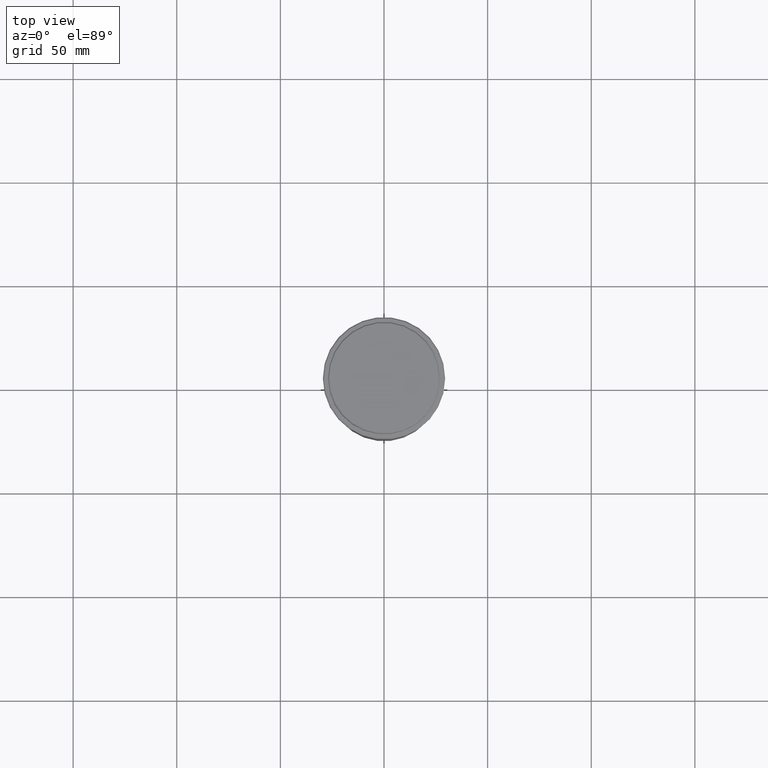
[diagram: clean part render]
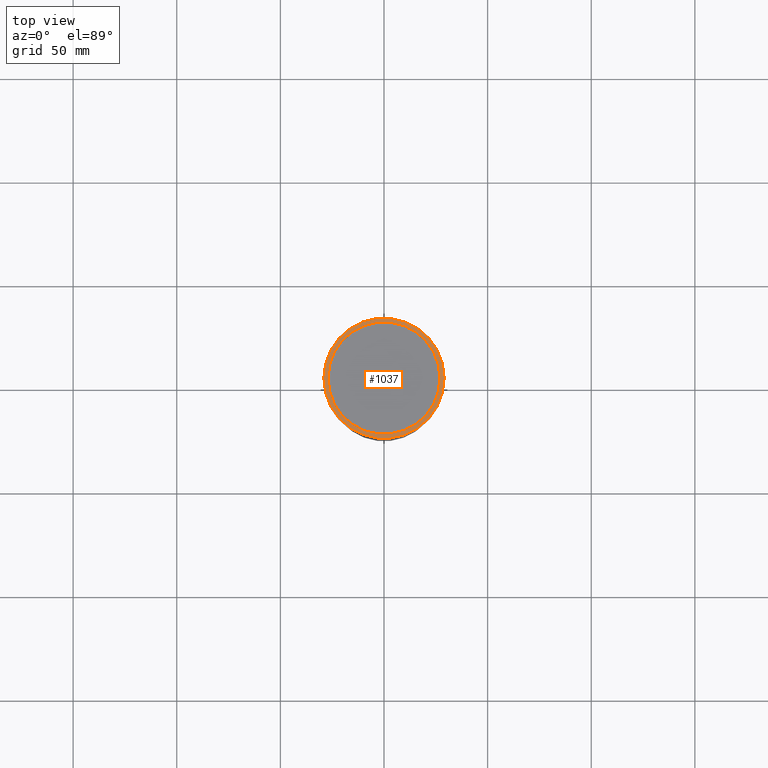
[diagram: same view with one face highlighted and labeled with its STEP entity id]
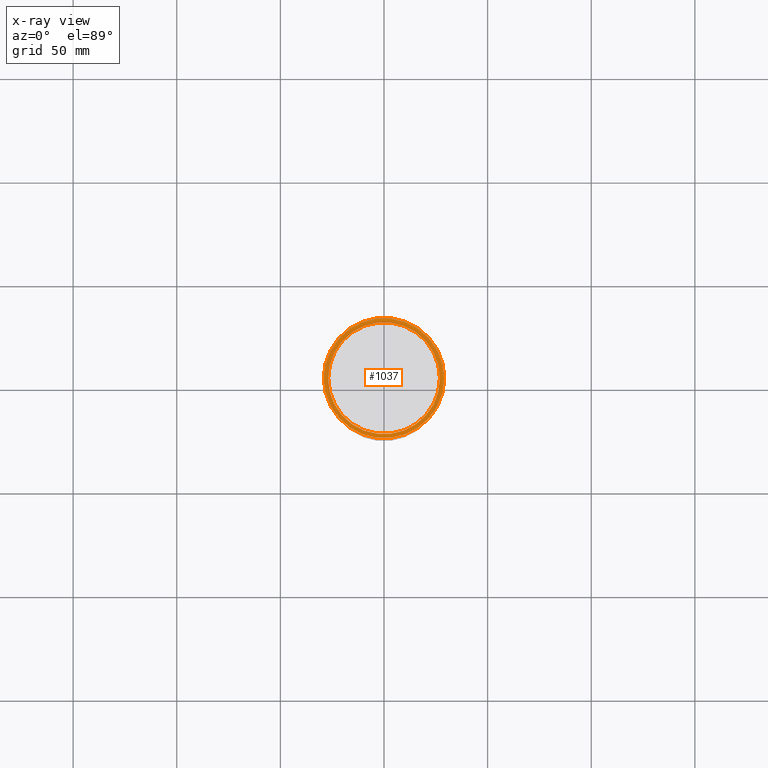
[diagram: x-ray of the same camera — body ghosted, the highlighted face saturated]
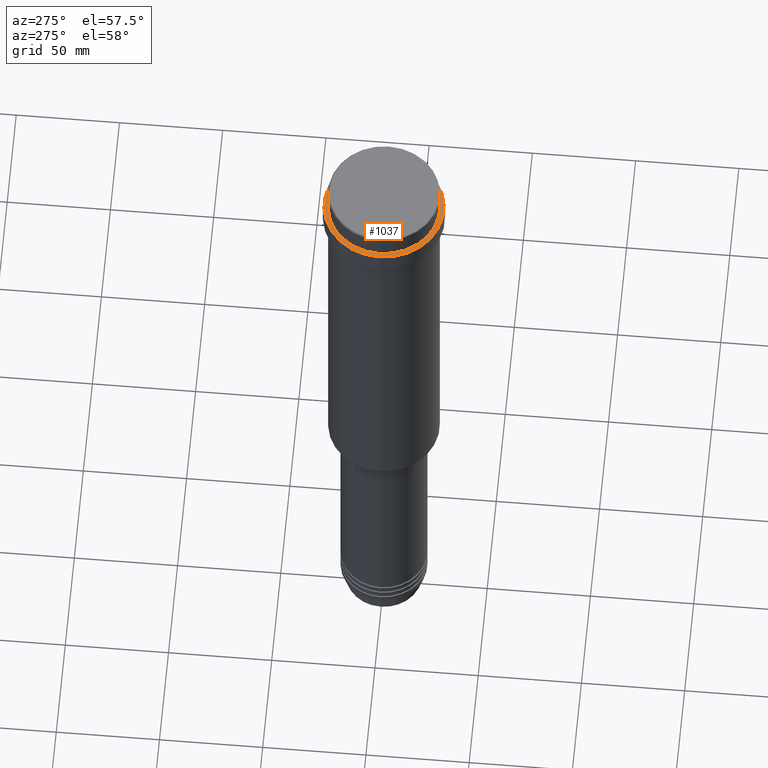
[diagram: same view with one face highlighted and labeled with its STEP entity id]
A machine part, top view. The second image highlights one B-rep face of the part: STEP entity #1037.
The next image is the same camera in x-ray: the body ghosted, the highlighted face saturated — about 0% of this face is hidden behind the body in this view.
A second angle (auxiliary view) of the same face is appended — the face is thin or edge-on in the first view.
In plain terms, the highlighted planar face has unit normal (0, -0, 1).
Its self-contained STEP definition (entity closure, byte-faithful):
#2 = DIRECTION ( 'NONE',  ( 0.000000000000000000, 0.000000000000000000, -1.000000000000000000 ) ) ;
#9 = AXIS2_PLACEMENT_3D ( 'NONE', #741, #1411, #772 ) ;
#92 = AXIS2_PLACEMENT_3D ( 'NONE', #142, #378, #1030 ) ;
#132 = CARTESIAN_POINT ( 'NONE',  ( 0.000000000000000000, 0.000000000000000000, -12.00000000000000355 ) ) ;
#142 = CARTESIAN_POINT ( 'NONE',  ( 0.000000000000000000, 26.49999999999999645, -12.00000000000000355 ) ) ;
#159 = PLANE ( 'NONE',  #92 ) ;
#188 = CIRCLE ( 'NONE', #1087, 26.99999999999999645 ) ;
#274 = VERTEX_POINT ( 'NONE', #675 ) ;
#303 = EDGE_LOOP ( 'NONE', ( #1028, #942 ) ) ;
#328 = CARTESIAN_POINT ( 'NONE',  ( -26.99999999999999645, 3.306546357697853339E-15, -12.00000000000000355 ) ) ;
#347 = DIRECTION ( 'NONE',  ( 0.000000000000000000, 0.000000000000000000, -1.000000000000000000 ) ) ;
#378 = DIRECTION ( 'NONE',  ( 0.000000000000000000, -0.000000000000000000, 1.000000000000000000 ) ) ;
#471 = CARTESIAN_POINT ( 'NONE',  ( 26.99999999999999645, 0.000000000000000000, -12.00000000000000355 ) ) ;
#553 = DIRECTION ( 'NONE',  ( 1.000000000000000000, 0.000000000000000000, 0.000000000000000000 ) ) ;
#634 = CARTESIAN_POINT ( 'NONE',  ( -29.00000000000002487, 0.000000000000000000, -12.00000000000000355 ) ) ;
#650 = AXIS2_PLACEMENT_3D ( 'NONE', #1187, #1209, #1291 ) ;
#662 = EDGE_CURVE ( 'NONE', #274, #1089, #1007, .T. ) ;
#675 = CARTESIAN_POINT ( 'NONE',  ( 29.00000000000002487, 3.582091887506009394E-15, -12.00000000000000355 ) ) ;
#697 = EDGE_CURVE ( 'NONE', #1089, #274, #1268, .T. ) ;
#708 = AXIS2_PLACEMENT_3D ( 'NONE', #877, #2, #553 ) ;
#736 = VERTEX_POINT ( 'NONE', #328 ) ;
#741 = CARTESIAN_POINT ( 'NONE',  ( 0.000000000000000000, 0.000000000000000000, -12.00000000000000355 ) ) ;
#772 = DIRECTION ( 'NONE',  ( 1.000000000000000000, 0.000000000000000000, 0.000000000000000000 ) ) ;
#776 = VERTEX_POINT ( 'NONE', #471 ) ;
#826 = CIRCLE ( 'NONE', #708, 26.99999999999999645 ) ;
#877 = CARTESIAN_POINT ( 'NONE',  ( 0.000000000000000000, 0.000000000000000000, -12.00000000000000355 ) ) ;
#942 = ORIENTED_EDGE ( 'NONE', *, *, #1095, .T. ) ;
#1007 = CIRCLE ( 'NONE', #9, 29.00000000000002487 ) ;
#1028 = ORIENTED_EDGE ( 'NONE', *, *, #1277, .T. ) ;
#1030 = DIRECTION ( 'NONE',  ( 1.000000000000000000, 0.000000000000000000, 0.000000000000000000 ) ) ;
#1037 = ADVANCED_FACE ( 'NONE', ( #1151, #1135 ), #159, .T. ) ;
#1067 = ORIENTED_EDGE ( 'NONE', *, *, #662, .T. ) ;
#1087 = AXIS2_PLACEMENT_3D ( 'NONE', #132, #347, #1237 ) ;
#1089 = VERTEX_POINT ( 'NONE', #634 ) ;
#1095 = EDGE_CURVE ( 'NONE', #736, #776, #826, .T. ) ;
#1111 = EDGE_LOOP ( 'NONE', ( #1174, #1067 ) ) ;
#1135 = FACE_BOUND ( 'NONE', #303, .T. ) ;
#1151 = FACE_OUTER_BOUND ( 'NONE', #1111, .T. ) ;
#1174 = ORIENTED_EDGE ( 'NONE', *, *, #697, .T. ) ;
#1187 = CARTESIAN_POINT ( 'NONE',  ( 0.000000000000000000, 0.000000000000000000, -12.00000000000000355 ) ) ;
#1209 = DIRECTION ( 'NONE',  ( -0.000000000000000000, -0.000000000000000000, 1.000000000000000000 ) ) ;
#1237 = DIRECTION ( 'NONE',  ( 1.000000000000000000, 0.000000000000000000, 0.000000000000000000 ) ) ;
#1268 = CIRCLE ( 'NONE', #650, 29.00000000000002487 ) ;
#1277 = EDGE_CURVE ( 'NONE', #776, #736, #188, .T. ) ;
#1291 = DIRECTION ( 'NONE',  ( 1.000000000000000000, 0.000000000000000000, 0.000000000000000000 ) ) ;
#1411 = DIRECTION ( 'NONE',  ( -0.000000000000000000, -0.000000000000000000, 1.000000000000000000 ) ) ;